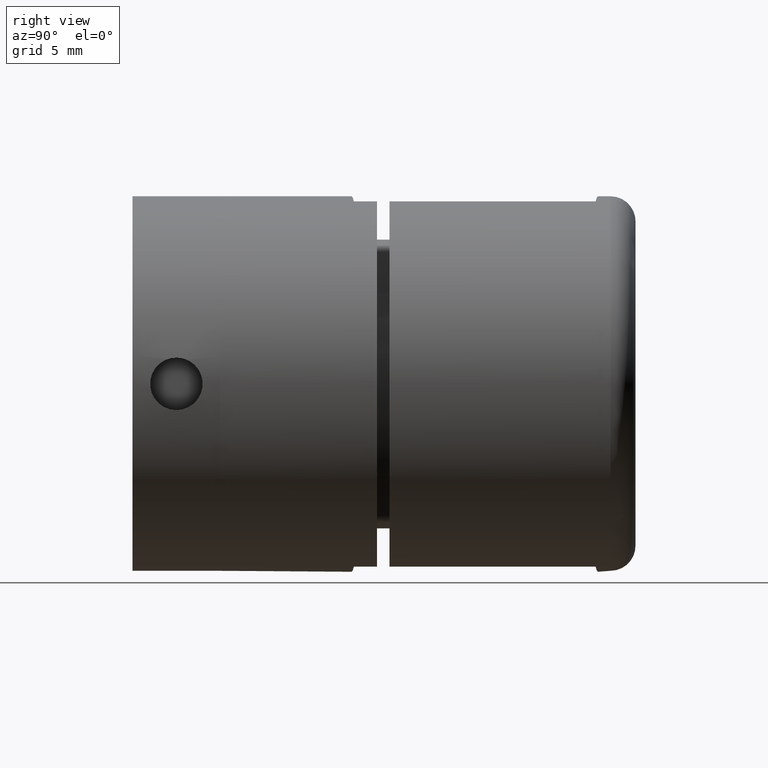
[diagram: clean part render]
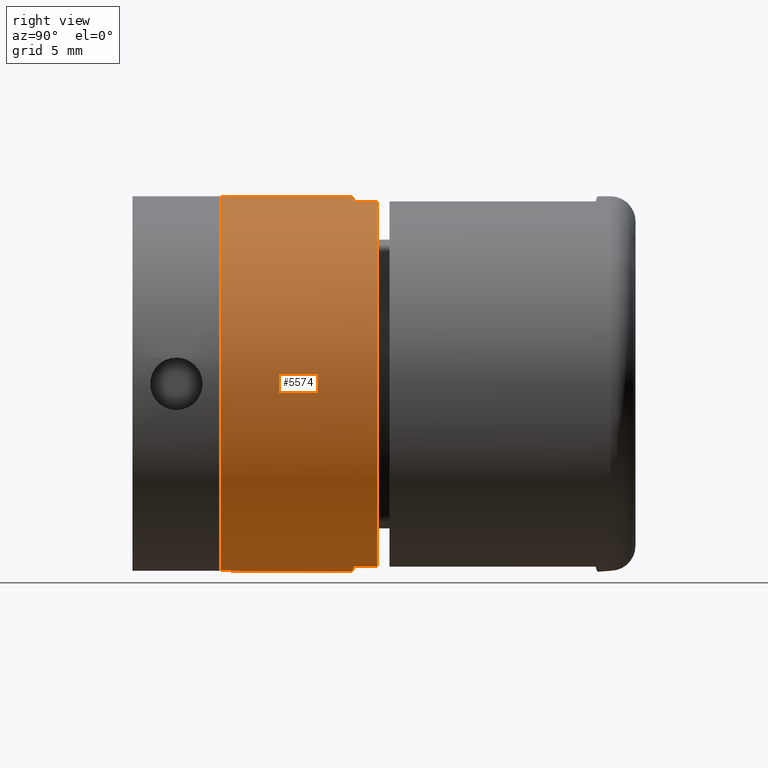
[diagram: same view with one face highlighted and labeled with its STEP entity id]
A machine part, right view. The second image highlights one B-rep face of the part: STEP entity #5574.
In plain terms, the highlighted cylindrical surface (bore or boss wall) has radius 15 mm, axis along (0, 1, 0).
Its self-contained STEP definition (entity closure, byte-faithful):
#35 = VERTEX_POINT ( 'NONE', #6625 ) ;
#435 = AXIS2_PLACEMENT_3D ( 'NONE', #5498, #4237, #6868 ) ;
#782 = CYLINDRICAL_SURFACE ( 'NONE', #435, 15.00000000000014000 ) ;
#783 = CARTESIAN_POINT ( 'NONE',  ( 2.352328130963235800, 1.906719706511179400, -14.86134394070586300 ) ) ;
#988 = CARTESIAN_POINT ( 'NONE',  ( 3.500000000000039500, 12.52999999999999900, -14.58595214581496600 ) ) ;
#1031 = EDGE_CURVE ( 'NONE', #6295, #2518, #4914, .T. ) ;
#1062 = CARTESIAN_POINT ( 'NONE',  ( 0.0000000000000000000, 0.0000000000000000000, 0.0000000000000000000 ) ) ;
#1133 = EDGE_LOOP ( 'NONE', ( #12138, #14163, #6356, #11902, #5872, #9430, #7402, #4075, #1543, #15157 ) ) ;
#1149 = CIRCLE ( 'NONE', #16291, 15.00000000000014000 ) ;
#1543 = ORIENTED_EDGE ( 'NONE', *, *, #12674, .T. ) ;
#1736 = CARTESIAN_POINT ( 'NONE',  ( -1.180250549532449800, 1.968145689701408500, -15.00000000000014000 ) ) ;
#2015 = DIRECTION ( 'NONE',  ( 7.395570986446916700E-032, 0.0000000000000000000, 1.000000000000000000 ) ) ;
#2040 = CARTESIAN_POINT ( 'NONE',  ( -3.500000000000036900, 1.846572772509342400, -14.58595214581497000 ) ) ;
#2096 = CARTESIAN_POINT ( 'NONE',  ( 3.500000000000036400, 0.0000000000000000000, -14.58595214581496600 ) ) ;
#2169 = VECTOR ( 'NONE', #6773, 1000.000000000000000 ) ;
#2261 = AXIS2_PLACEMENT_3D ( 'NONE', #5771, #7199, #16256 ) ;
#2313 = DIRECTION ( 'NONE',  ( 0.0000000000000000000, 1.000000000000000000, 0.0000000000000000000 ) ) ;
#2518 = VERTEX_POINT ( 'NONE', #14042 ) ;
#3873 = AXIS2_PLACEMENT_3D ( 'NONE', #1062, #2313, #8548 ) ;
#3996 = VERTEX_POINT ( 'NONE', #10987 ) ;
#4075 = ORIENTED_EDGE ( 'NONE', *, *, #15388, .T. ) ;
#4237 = DIRECTION ( 'NONE',  ( 0.0000000000000000000, -1.000000000000000000, 0.0000000000000000000 ) ) ;
#4331 = VERTEX_POINT ( 'NONE', #15155 ) ;
#4370 = EDGE_CURVE ( 'NONE', #14406, #8580, #5259, .T. ) ;
#4373 =( BOUNDED_CURVE ( )  B_SPLINE_CURVE ( 3, ( #9492, #1736, #9609, #2040 ),
 .UNSPECIFIED., .F., .T. ) 
 B_SPLINE_CURVE_WITH_KNOTS ( ( 4, 4 ),
 ( 4.712388980384689700, 4.947893217105489700 ),
 .UNSPECIFIED. ) 
 CURVE ( )  GEOMETRIC_REPRESENTATION_ITEM ( )  RATIONAL_B_SPLINE_CURVE ( ( 1.000000000000000000, 0.9953834841226971700, 0.9953834841226971700, 1.000000000000000000 ) ) 
 REPRESENTATION_ITEM ( '' )  );
#4496 = CARTESIAN_POINT ( 'NONE',  ( -1.180250549532452200, 1.968145689701408500, 15.00000000000014000 ) ) ;
#4535 = EDGE_CURVE ( 'NONE', #3996, #15280, #16140, .T. ) ;
#4694 = CARTESIAN_POINT ( 'NONE',  ( 3.500000000000039500, 12.52999999999999900, 14.58595214581496600 ) ) ;
#4860 = CARTESIAN_POINT ( 'NONE',  ( 1.155557966632341500E-030, 2.029999999999997100, 15.00000000000014600 ) ) ;
#4914 = LINE ( 'NONE', #9005, #10937 ) ;
#5023 = FACE_OUTER_BOUND ( 'NONE', #1133, .T. ) ;
#5259 = LINE ( 'NONE', #988, #14922 ) ;
#5498 = CARTESIAN_POINT ( 'NONE',  ( 0.0000000000000000000, 12.52999999999999900, 0.0000000000000000000 ) ) ;
#5574 = ADVANCED_FACE ( 'NONE', ( #15913, #5023 ), #782, .T. ) ;
#5771 = CARTESIAN_POINT ( 'NONE',  ( 0.0000000000000000000, 0.0000000000000000000, 0.0000000000000000000 ) ) ;
#5842 = EDGE_CURVE ( 'NONE', #35, #9475, #9877, .T. ) ;
#5872 = ORIENTED_EDGE ( 'NONE', *, *, #4535, .T. ) ;
#5883 = DIRECTION ( 'NONE',  ( 0.0000000000000000000, 1.000000000000000000, 0.0000000000000000000 ) ) ;
#6256 = EDGE_CURVE ( 'NONE', #2518, #35, #6852, .T. ) ;
#6295 = VERTEX_POINT ( 'NONE', #8538 ) ;
#6318 = VERTEX_POINT ( 'NONE', #14281 ) ;
#6356 = ORIENTED_EDGE ( 'NONE', *, *, #13908, .T. ) ;
#6502 = CARTESIAN_POINT ( 'NONE',  ( 3.500000000000036900, 1.846572772509342400, -14.58595214581496600 ) ) ;
#6625 = CARTESIAN_POINT ( 'NONE',  ( -3.500000000000036400, 0.0000000000000000000, 14.58595214581496400 ) ) ;
#6773 = DIRECTION ( 'NONE',  ( -0.0000000000000000000, 1.000000000000000000, -0.0000000000000000000 ) ) ;
#6852 = CIRCLE ( 'NONE', #3873, 15.00000000000014000 ) ;
#6868 = DIRECTION ( 'NONE',  ( -7.395570986446916700E-032, 0.0000000000000000000, -1.000000000000000000 ) ) ;
#6964 = ORIENTED_EDGE ( 'NONE', *, *, #15363, .F. ) ;
#7006 = CARTESIAN_POINT ( 'NONE',  ( -3.500000000000036900, 1.846572772509342400, 14.58595214581496400 ) ) ;
#7070 = CARTESIAN_POINT ( 'NONE',  ( -3.500000000000036900, 1.846572772509342400, 14.58595214581496400 ) ) ;
#7199 = DIRECTION ( 'NONE',  ( 0.0000000000000000000, 1.000000000000000000, 0.0000000000000000000 ) ) ;
#7402 = ORIENTED_EDGE ( 'NONE', *, *, #4370, .T. ) ;
#8456 =( BOUNDED_CURVE ( )  B_SPLINE_CURVE ( 3, ( #7006, #16002, #4496, #9467 ),
 .UNSPECIFIED., .F., .F. ) 
 B_SPLINE_CURVE_WITH_KNOTS ( ( 4, 4 ),
 ( 1.335292090074096800, 1.570796326794896600 ),
 .UNSPECIFIED. ) 
 CURVE ( )  GEOMETRIC_REPRESENTATION_ITEM ( )  RATIONAL_B_SPLINE_CURVE ( ( 1.000000000000000000, 0.9953834841226971700, 0.9953834841226971700, 1.000000000000000000 ) ) 
 REPRESENTATION_ITEM ( '' )  );
#8464 = EDGE_CURVE ( 'NONE', #15280, #14406, #12392, .T. ) ;
#8538 = CARTESIAN_POINT ( 'NONE',  ( -3.500000000000036900, 1.846572772509342400, -14.58595214581497000 ) ) ;
#8548 = DIRECTION ( 'NONE',  ( 7.395570986446916700E-032, 0.0000000000000000000, 1.000000000000000000 ) ) ;
#8580 = VERTEX_POINT ( 'NONE', #6502 ) ;
#8733 = CARTESIAN_POINT ( 'NONE',  ( 3.500000000000036900, 1.846572772509342400, -14.58595214581496600 ) ) ;
#8970 = DIRECTION ( 'NONE',  ( 0.0000000000000000000, -1.000000000000000000, 0.0000000000000000000 ) ) ;
#9005 = CARTESIAN_POINT ( 'NONE',  ( -3.500000000000039500, 12.52999999999999900, -14.58595214581496600 ) ) ;
#9140 =( BOUNDED_CURVE ( )  B_SPLINE_CURVE ( 3, ( #4860, #9893, #12536, #11310 ),
 .UNSPECIFIED., .F., .T. ) 
 B_SPLINE_CURVE_WITH_KNOTS ( ( 4, 4 ),
 ( 4.712388980384689700, 4.947893217105489700 ),
 .UNSPECIFIED. ) 
 CURVE ( )  GEOMETRIC_REPRESENTATION_ITEM ( )  RATIONAL_B_SPLINE_CURVE ( ( 1.000000000000000000, 0.9953834841226971700, 0.9953834841226971700, 1.000000000000000000 ) ) 
 REPRESENTATION_ITEM ( '' )  );
#9252 = EDGE_CURVE ( 'NONE', #4331, #3996, #9140, .T. ) ;
#9430 = ORIENTED_EDGE ( 'NONE', *, *, #8464, .T. ) ;
#9467 = CARTESIAN_POINT ( 'NONE',  ( 1.155557966632341500E-030, 2.029999999999997100, 15.00000000000014600 ) ) ;
#9475 = VERTEX_POINT ( 'NONE', #7070 ) ;
#9492 = CARTESIAN_POINT ( 'NONE',  ( -1.155557966632341500E-030, 2.029999999999997100, -15.00000000000014600 ) ) ;
#9609 = CARTESIAN_POINT ( 'NONE',  ( -2.352328130963234000, 1.906719706511179400, -14.86134394070586500 ) ) ;
#9800 = EDGE_LOOP ( 'NONE', ( #6964 ) ) ;
#9877 = LINE ( 'NONE', #11972, #2169 ) ;
#9893 = CARTESIAN_POINT ( 'NONE',  ( 1.180250549532449800, 1.968145689701408500, 15.00000000000014000 ) ) ;
#10021 = DIRECTION ( 'NONE',  ( -0.0000000000000000000, 1.000000000000000000, -0.0000000000000000000 ) ) ;
#10868 = VECTOR ( 'NONE', #16145, 1000.000000000000000 ) ;
#10937 = VECTOR ( 'NONE', #8970, 1000.000000000000000 ) ;
#10987 = CARTESIAN_POINT ( 'NONE',  ( 3.500000000000036900, 1.846572772509342400, 14.58595214581496400 ) ) ;
#11131 = CARTESIAN_POINT ( 'NONE',  ( -1.155557966632341500E-030, 2.029999999999997100, -15.00000000000014600 ) ) ;
#11310 = CARTESIAN_POINT ( 'NONE',  ( 3.500000000000036900, 1.846572772509342400, 14.58595214581496400 ) ) ;
#11828 = CARTESIAN_POINT ( 'NONE',  ( -1.155557966632341500E-030, 2.029999999999997100, -15.00000000000014600 ) ) ;
#11902 = ORIENTED_EDGE ( 'NONE', *, *, #9252, .T. ) ;
#11972 = CARTESIAN_POINT ( 'NONE',  ( -3.500000000000039500, 12.52999999999999900, 14.58595214581496600 ) ) ;
#12138 = ORIENTED_EDGE ( 'NONE', *, *, #6256, .T. ) ;
#12392 = CIRCLE ( 'NONE', #2261, 15.00000000000014000 ) ;
#12536 = CARTESIAN_POINT ( 'NONE',  ( 2.352328130963234000, 1.906719706511179400, 14.86134394070586500 ) ) ;
#12674 = EDGE_CURVE ( 'NONE', #14746, #6295, #4373, .T. ) ;
#13908 = EDGE_CURVE ( 'NONE', #9475, #4331, #8456, .T. ) ;
#14042 = CARTESIAN_POINT ( 'NONE',  ( -3.500000000000036400, 0.0000000000000000000, -14.58595214581496600 ) ) ;
#14163 = ORIENTED_EDGE ( 'NONE', *, *, #5842, .T. ) ;
#14281 = CARTESIAN_POINT ( 'NONE',  ( 1.109335647967047900E-030, 12.52999999999999900, 15.00000000000014000 ) ) ;
#14406 = VERTEX_POINT ( 'NONE', #2096 ) ;
#14587 = CARTESIAN_POINT ( 'NONE',  ( 0.0000000000000000000, 12.52999999999999900, 0.0000000000000000000 ) ) ;
#14746 = VERTEX_POINT ( 'NONE', #11828 ) ;
#14876 = CARTESIAN_POINT ( 'NONE',  ( 3.500000000000036400, 0.0000000000000000000, 14.58595214581496400 ) ) ;
#14922 = VECTOR ( 'NONE', #10021, 1000.000000000000000 ) ;
#15041 = CARTESIAN_POINT ( 'NONE',  ( 1.180250549532452200, 1.968145689701408500, -15.00000000000014000 ) ) ;
#15155 = CARTESIAN_POINT ( 'NONE',  ( 1.155557966632341500E-030, 2.029999999999997100, 15.00000000000014600 ) ) ;
#15157 = ORIENTED_EDGE ( 'NONE', *, *, #1031, .T. ) ;
#15280 = VERTEX_POINT ( 'NONE', #14876 ) ;
#15363 = EDGE_CURVE ( 'NONE', #6318, #6318, #1149, .T. ) ;
#15388 = EDGE_CURVE ( 'NONE', #8580, #14746, #15665, .T. ) ;
#15665 =( BOUNDED_CURVE ( )  B_SPLINE_CURVE ( 3, ( #8733, #783, #15041, #11131 ),
 .UNSPECIFIED., .F., .T. ) 
 B_SPLINE_CURVE_WITH_KNOTS ( ( 4, 4 ),
 ( 1.335292090074096800, 1.570796326794896600 ),
 .UNSPECIFIED. ) 
 CURVE ( )  GEOMETRIC_REPRESENTATION_ITEM ( )  RATIONAL_B_SPLINE_CURVE ( ( 1.000000000000000000, 0.9953834841226971700, 0.9953834841226971700, 1.000000000000000000 ) ) 
 REPRESENTATION_ITEM ( '' )  );
#15913 = FACE_OUTER_BOUND ( 'NONE', #9800, .T. ) ;
#16002 = CARTESIAN_POINT ( 'NONE',  ( -2.352328130963235800, 1.906719706511179400, 14.86134394070586300 ) ) ;
#16140 = LINE ( 'NONE', #4694, #10868 ) ;
#16145 = DIRECTION ( 'NONE',  ( 0.0000000000000000000, -1.000000000000000000, 0.0000000000000000000 ) ) ;
#16256 = DIRECTION ( 'NONE',  ( 7.395570986446916700E-032, 0.0000000000000000000, 1.000000000000000000 ) ) ;
#16291 = AXIS2_PLACEMENT_3D ( 'NONE', #14587, #5883, #2015 ) ;